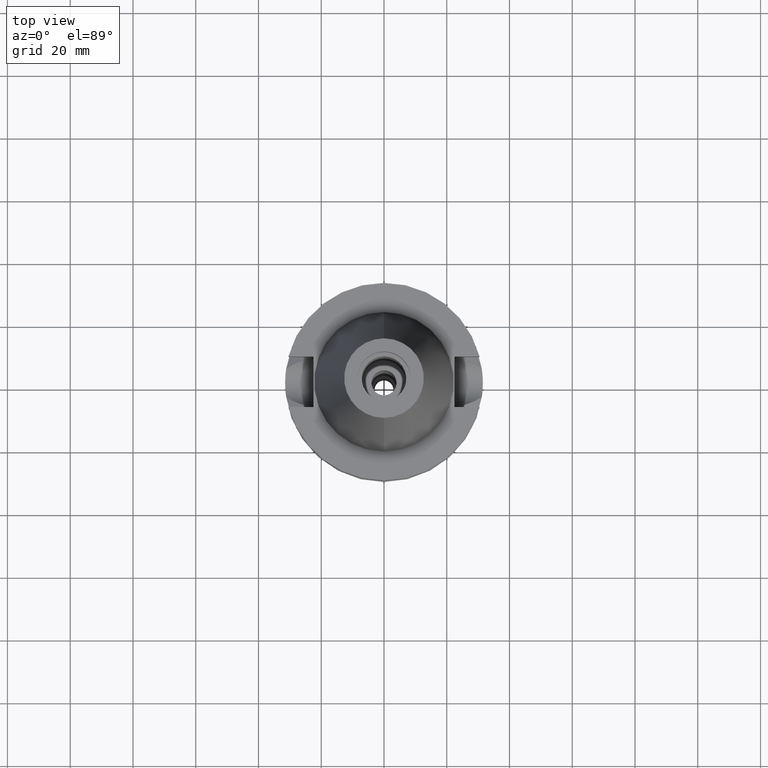
[diagram: clean part render]
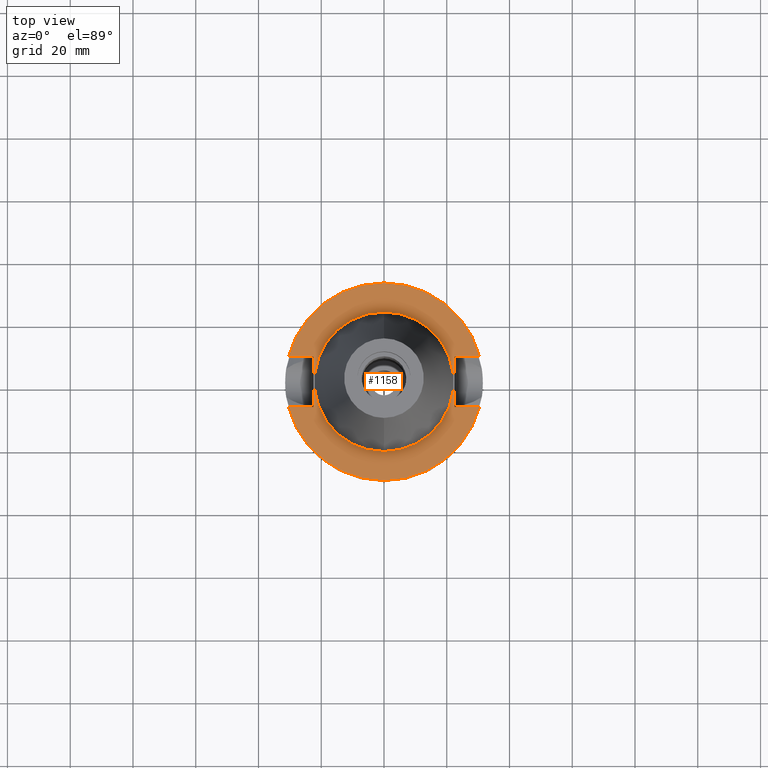
[diagram: same view with one face highlighted and labeled with its STEP entity id]
A machine part, top view. The second image highlights one B-rep face of the part: STEP entity #1158.
In plain terms, the highlighted planar face has unit normal (0, 0, -1).
Its self-contained STEP definition (entity closure, byte-faithful):
#94=DIRECTION('',(0.E0,1.E0,0.E0));
#95=VECTOR('',#94,1.61E1);
#96=CARTESIAN_POINT('',(-2.25E1,-8.05E0,-1.E0));
#97=LINE('',#96,#95);
#101=DIRECTION('',(-1.E0,-3.550916904668E-14,0.E0));
#102=VECTOR('',#101,7.954022722788E0);
#103=CARTESIAN_POINT('',(-2.25E1,8.05E0,-1.E0));
#104=LINE('',#103,#102);
#108=CARTESIAN_POINT('',(0.E0,2.157460266058E-14,-1.E0));
#109=DIRECTION('',(0.E0,0.E0,-1.E0));
#110=DIRECTION('',(-9.667943721520E-1,2.555555555556E-1,0.E0));
#111=AXIS2_PLACEMENT_3D('',#108,#109,#110);
#116=CARTESIAN_POINT('',(0.E0,2.157460266058E-14,-1.E0));
#117=DIRECTION('',(0.E0,0.E0,-1.E0));
#118=DIRECTION('',(0.E0,1.E0,0.E0));
#119=AXIS2_PLACEMENT_3D('',#116,#117,#118);
#124=DIRECTION('',(0.E0,-1.E0,0.E0));
#125=VECTOR('',#124,1.61E1);
#126=CARTESIAN_POINT('',(2.25E1,8.05E0,-1.E0));
#127=LINE('',#126,#125);
#131=DIRECTION('',(1.E0,3.573249715390E-14,0.E0));
#132=VECTOR('',#131,7.954022722788E0);
#133=CARTESIAN_POINT('',(2.25E1,-8.05E0,-1.E0));
#134=LINE('',#133,#132);
#138=CARTESIAN_POINT('',(0.E0,2.157460266058E-14,-1.E0));
#139=DIRECTION('',(0.E0,0.E0,-1.E0));
#140=DIRECTION('',(9.667943721520E-1,-2.555555555556E-1,0.E0));
#141=AXIS2_PLACEMENT_3D('',#138,#139,#140);
#146=CARTESIAN_POINT('',(0.E0,2.157460266058E-14,-1.E0));
#147=DIRECTION('',(0.E0,0.E0,-1.E0));
#148=DIRECTION('',(0.E0,-1.E0,0.E0));
#149=AXIS2_PLACEMENT_3D('',#146,#147,#148);
#154=CARTESIAN_POINT('',(0.E0,2.157460266058E-14,-1.E0));
#155=DIRECTION('',(0.E0,0.E0,1.E0));
#156=DIRECTION('',(0.E0,-1.E0,0.E0));
#157=AXIS2_PLACEMENT_3D('',#154,#155,#156);
#162=CARTESIAN_POINT('',(0.E0,2.157460266058E-14,-1.E0));
#163=DIRECTION('',(0.E0,0.E0,1.E0));
#164=DIRECTION('',(0.E0,1.E0,0.E0));
#165=AXIS2_PLACEMENT_3D('',#162,#163,#164);
#200=DIRECTION('',(-1.E0,3.550916904668E-14,0.E0));
#201=VECTOR('',#200,7.954022722788E0);
#202=CARTESIAN_POINT('',(-2.25E1,-8.05E0,-1.E0));
#203=LINE('',#202,#201);
#337=DIRECTION('',(1.E0,-3.506251283226E-14,0.E0));
#338=VECTOR('',#337,7.954022722788E0);
#339=CARTESIAN_POINT('',(2.25E1,8.05E0,-1.E0));
#340=LINE('',#339,#338);
#1015=CARTESIAN_POINT('',(-2.25E1,-8.05E0,-1.E0));
#1016=VERTEX_POINT('',#1015);
#1017=CARTESIAN_POINT('',(-3.045402272279E1,-8.05E0,-1.E0));
#1018=VERTEX_POINT('',#1017);
#1021=CARTESIAN_POINT('',(-2.25E1,8.05E0,-1.E0));
#1022=VERTEX_POINT('',#1021);
#1023=CARTESIAN_POINT('',(-3.045402272279E1,8.05E0,-1.E0));
#1024=VERTEX_POINT('',#1023);
#1025=CARTESIAN_POINT('',(-3.046064939756E-14,3.15E1,-1.E0));
#1026=CARTESIAN_POINT('',(3.045402272279E1,8.05E0,-1.E0));
#1027=VERTEX_POINT('',#1025);
#1028=VERTEX_POINT('',#1026);
#1029=CARTESIAN_POINT('',(2.25E1,8.05E0,-1.E0));
#1030=VERTEX_POINT('',#1029);
#1031=CARTESIAN_POINT('',(2.25E1,-8.05E0,-1.E0));
#1032=VERTEX_POINT('',#1031);
#1033=CARTESIAN_POINT('',(3.045402272279E1,-8.05E0,-1.E0));
#1034=VERTEX_POINT('',#1033);
#1035=CARTESIAN_POINT('',(3.046064939756E-14,-3.15E1,-1.E0));
#1036=VERTEX_POINT('',#1035);
#1037=CARTESIAN_POINT('',(0.E0,-2.2225E1,-1.E0));
#1038=CARTESIAN_POINT('',(0.E0,2.2225E1,-1.E0));
#1039=VERTEX_POINT('',#1037);
#1040=VERTEX_POINT('',#1038);
#1127=CARTESIAN_POINT('',(0.E0,1.212400331156E-14,-1.E0));
#1128=DIRECTION('',(0.E0,0.E0,-1.E0));
#1129=DIRECTION('',(0.E0,-1.E0,0.E0));
#1130=AXIS2_PLACEMENT_3D('',#1127,#1128,#1129);
#1131=PLANE('',#1130);
#1133=ORIENTED_EDGE('',*,*,#1132,.T.);
#1135=ORIENTED_EDGE('',*,*,#1134,.T.);
#1137=ORIENTED_EDGE('',*,*,#1136,.T.);
#1139=ORIENTED_EDGE('',*,*,#1138,.T.);
#1141=ORIENTED_EDGE('',*,*,#1140,.F.);
#1143=ORIENTED_EDGE('',*,*,#1142,.T.);
#1145=ORIENTED_EDGE('',*,*,#1144,.T.);
#1147=ORIENTED_EDGE('',*,*,#1146,.T.);
#1149=ORIENTED_EDGE('',*,*,#1148,.T.);
#1151=ORIENTED_EDGE('',*,*,#1150,.F.);
#1152=EDGE_LOOP('',(#1133,#1135,#1137,#1139,#1141,#1143,#1145,#1147,#1149,
#1151));
#1153=FACE_OUTER_BOUND('',#1152,.F.);
#1154=ORIENTED_EDGE('',*,*,#1106,.T.);
#1155=ORIENTED_EDGE('',*,*,#1122,.T.);
#1156=EDGE_LOOP('',(#1154,#1155));
#1157=FACE_BOUND('',#1156,.F.);
#112=CIRCLE('',#111,3.15E1);
#120=CIRCLE('',#119,3.15E1);
#142=CIRCLE('',#141,3.15E1);
#150=CIRCLE('',#149,3.15E1);
#158=CIRCLE('',#157,2.2225E1);
#166=CIRCLE('',#165,2.2225E1);
#1106=EDGE_CURVE('',#1039,#1040,#158,.T.);
#1122=EDGE_CURVE('',#1040,#1039,#166,.T.);
#1132=EDGE_CURVE('',#1016,#1022,#97,.T.);
#1134=EDGE_CURVE('',#1022,#1024,#104,.T.);
#1136=EDGE_CURVE('',#1024,#1027,#112,.T.);
#1138=EDGE_CURVE('',#1027,#1028,#120,.T.);
#1140=EDGE_CURVE('',#1030,#1028,#340,.T.);
#1142=EDGE_CURVE('',#1030,#1032,#127,.T.);
#1144=EDGE_CURVE('',#1032,#1034,#134,.T.);
#1146=EDGE_CURVE('',#1034,#1036,#142,.T.);
#1148=EDGE_CURVE('',#1036,#1018,#150,.T.);
#1150=EDGE_CURVE('',#1016,#1018,#203,.T.);
#1158=ADVANCED_FACE('',(#1153,#1157),#1131,.F.);